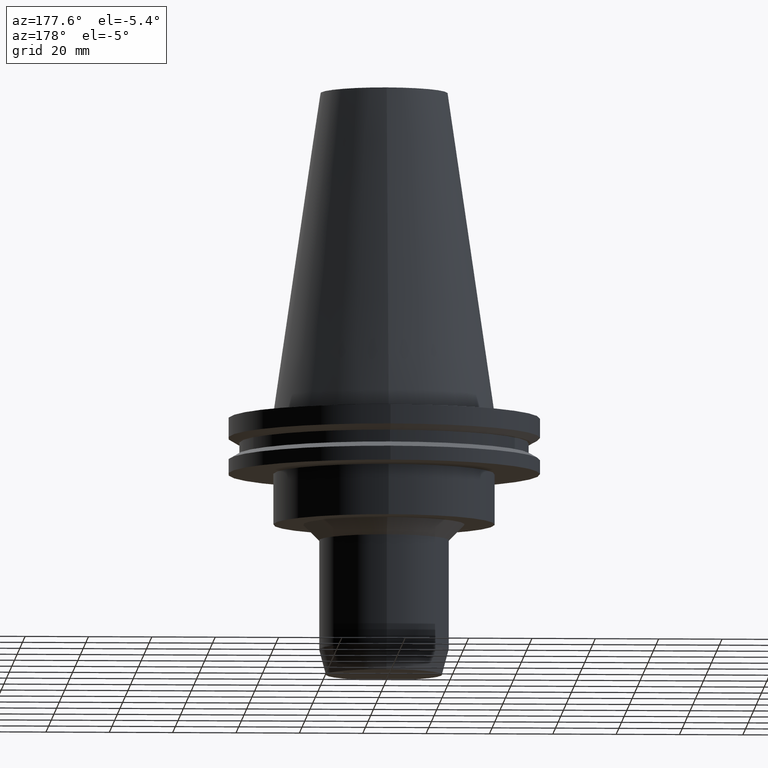
[diagram: clean part render]
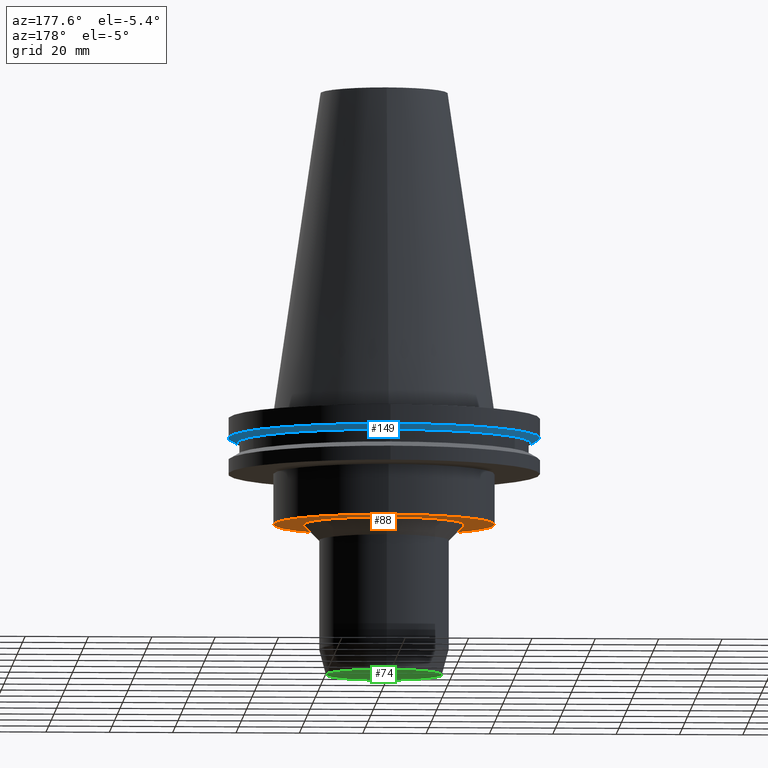
[diagram: same view with three faces highlighted in distinct colors, each labeled with its STEP entity id]
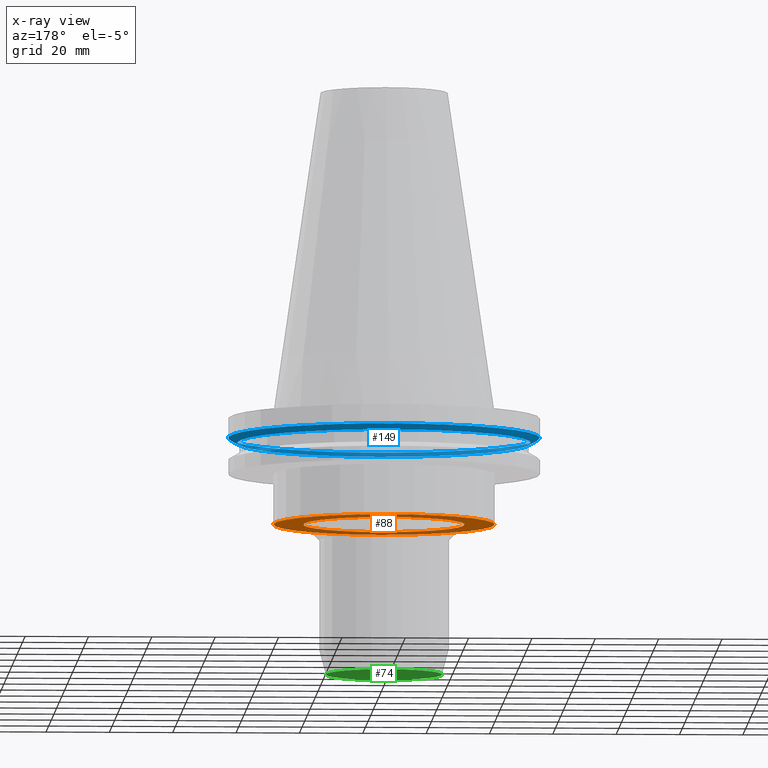
[diagram: x-ray of the same camera — body ghosted, the three highlighted faces saturated]
A machine part, auxiliary view with three faces highlighted in distinct colors.
The next image is the same camera in x-ray (body ghosted, the three faces saturated) — at least one of them is partly hidden behind the body in this view.
Their STEP definitions:

[orange] entity #88 — the highlighted planar face has unit normal (0, 0, -1).
#88=ADVANCED_FACE('Unnamed[1]',(#210,#211),#212,.T.);
#123=EDGE_CURVE('Unnamed[1]',#264,#264,#265,.T.);
#125=EDGE_CURVE('Unnamed[1]',#267,#267,#268,.T.);
#210=FACE_BOUND('',#370,.T.);
#211=FACE_OUTER_BOUND('',#371,.T.);
#212=PLANE('',#372);
#264=VERTEX_POINT('',#437);
#265=CIRCLE('',#438,34.925);
#267=VERTEX_POINT('',#441);
#268=CIRCLE('',#442,25.4999999999991);
#370=EDGE_LOOP('',(#540));
#371=EDGE_LOOP('',(#541));
#372=AXIS2_PLACEMENT_3D('',#542,#543,#544);
#437=CARTESIAN_POINT('',(2.14313189850787E-015,34.925,-35.0000000000001));
#438=AXIS2_PLACEMENT_3D('',#599,#600,#601);
#441=CARTESIAN_POINT('',(2.14313189850789E-015,25.4999999999991,-35.0000000000003));
#442=AXIS2_PLACEMENT_3D('',#602,#603,#604);
#540=ORIENTED_EDGE('',*,*,#125,.F.);
#541=ORIENTED_EDGE('',*,*,#123,.T.);
#542=CARTESIAN_POINT('',(2.14313189850788E-015,30.2124999999996,-35.0000000000002));
#543=DIRECTION('',(6.12323399573677E-017,2.72625585657091E-014,-1.0));
#544=DIRECTION('',(-1.67417740693391E-030,1.0,2.72625585657091E-014));
#599=CARTESIAN_POINT('',(2.14313189850787E-015,3.1686385500356E-014,-35.0000000000001));
#600=DIRECTION('',(6.12323399573677E-017,7.22462196173145E-016,-1.0));
#601=DIRECTION('',(-4.90652035331901E-032,1.0,7.22462196173145E-016));
#602=CARTESIAN_POINT('',(2.14313189850789E-015,3.16863855003561E-014,-35.0000000000003));
#603=DIRECTION('',(6.12323399573677E-017,7.22462196173044E-016,-1.0));
#604=DIRECTION('',(-4.90652035331799E-032,1.0,7.22462196173044E-016));

[blue] entity #149 — the highlighted conical surface has half-angle 60 deg.
#102=EDGE_CURVE('Unnamed[1]',#232,#232,#233,.T.);
#140=EDGE_CURVE('Unnamed[1]',#291,#291,#292,.T.);
#149=ADVANCED_FACE('Unnamed[1]',(#305,#306),#307,.T.);
#232=VERTEX_POINT('',#398);
#233=CIRCLE('',#399,49.2125);
#291=VERTEX_POINT('',#471);
#292=CIRCLE('',#472,46.432558453852);
#305=FACE_BOUND('',#488,.T.);
#306=FACE_BOUND('',#489,.T.);
#307=CONICAL_SURFACE('',#490,47.822529226926,1.04719755119663);
#398=CARTESIAN_POINT('',(4.65059621976208E-016,49.2125,-7.59500000000002));
#399=AXIS2_PLACEMENT_3D('',#565,#566,#567);
#471=CARTESIAN_POINT('',(5.63337527607778E-016,46.432558453852,-9.19999999999993));
#472=AXIS2_PLACEMENT_3D('',#629,#630,#631);
#488=EDGE_LOOP('',(#645));
#489=EDGE_LOOP('',(#646));
#490=AXIS2_PLACEMENT_3D('',#647,#648,#649);
#565=CARTESIAN_POINT('',(4.65059621976211E-016,1.18873090142322E-014,-7.59500000000006));
#566=DIRECTION('',(6.12323399573677E-017,7.22462196173162E-016,-1.0));
#567=DIRECTION('',(-4.90652035331882E-032,1.0,7.22462196173162E-016));
#629=CARTESIAN_POINT('',(5.6333752760778E-016,1.30468608390899E-014,-9.19999999999996));
#630=DIRECTION('',(6.12323399573677E-017,7.22462196173116E-016,-1.0));
#631=DIRECTION('',(-4.90652035331843E-032,1.0,7.22462196173116E-016));
#645=ORIENTED_EDGE('',*,*,#140,.F.);
#646=ORIENTED_EDGE('',*,*,#102,.T.);
#647=CARTESIAN_POINT('',(5.14198574791995E-016,1.2467084926661E-014,-8.39750000000001));
#648=DIRECTION('',(-6.12323399573677E-017,-7.22462196173072E-016,1.0));
#649=DIRECTION('',(-4.90652035331863E-032,1.0,7.22462196173072E-016));

[green] entity #74 — the highlighted planar face has unit normal (0, 0, -1).
#74=ADVANCED_FACE('Unnamed[1]',(#188),#189,.T.);
#94=EDGE_CURVE('Unnamed[1]',#220,#220,#221,.T.);
#188=FACE_OUTER_BOUND('',#343,.T.);
#189=PLANE('',#344);
#220=VERTEX_POINT('',#383);
#221=CIRCLE('',#384,18.3564064645584);
#343=EDGE_LOOP('',(#514));
#344=AXIS2_PLACEMENT_3D('',#515,#516,#517);
#383=CARTESIAN_POINT('',(5.0547296634807E-015,18.3564064645584,-82.55));
#384=AXIS2_PLACEMENT_3D('',#551,#552,#553);
#514=ORIENTED_EDGE('',*,*,#94,.T.);
#515=CARTESIAN_POINT('',(5.0547296634807E-015,9.17820323227924,-82.55));
#516=DIRECTION('',(6.12323399573677E-017,1.22464679914735E-016,-1.0));
#517=DIRECTION('',(-1.23259516440783E-032,1.0,1.22464679914735E-016));
#551=CARTESIAN_POINT('',(5.0547296634807E-015,6.60394629283868E-014,-82.55));
#552=DIRECTION('',(6.12323399573677E-017,7.22462196173126E-016,-1.0));
#553=DIRECTION('',(-4.90652035331923E-032,1.0,7.22462196173125E-016));